MODEL slx_7c35e53b8346
KIND model
CONFIG AbsTol = auto
CONFIG EnableMultiTasking = off
CONFIG FixedStep = 0.001
CONFIG MaxStep = auto
CONFIG MinStep = auto
CONFIG RelTol = 1e-3
CONFIG SampleTimeConstraint = Unconstrained
CONFIG Solver = ode4
CONFIG SolverName = ode4
CONFIG StartTime = 0.0
CONFIG StopTime = 10
WORKSPACE source: MAT-file member
WORKSPACE Cd = 0.18
BLOCK [Constant] Constant
  Value = 15
BLOCK [Constant] Constant1
  Value = 15
BLOCK [SubSystem] PLANE(checked)
  Ports = [2, 2]
  RequestExecContextInheritance = off
BLOCK [Gain] PLANE(checked)/Gain
  Gain = g_common*mass_plane
  OutDataTypeStr = Inherit: Inherit via internal rule
  ParamDataTypeStr = Inherit: Inherit via internal rule
  SaturateOnIntegerOverflow = off
BLOCK [Gain] PLANE(checked)/Gain1
  Gain = 1/mass_plane
  OutDataTypeStr = Inherit: Inherit via internal rule
  ParamDataTypeStr = Inherit: Inherit via internal rule
  SaturateOnIntegerOverflow = off
BLOCK [Gain] PLANE(checked)/Gain2
  Gain = 0.5*rou*Cd
  OutDataTypeStr = Inherit: Inherit via internal rule
  ParamDataTypeStr = Inherit: Inherit via internal rule
  SaturateOnIntegerOverflow = off
BLOCK [InitialCondition] PLANE(checked)/IC
  Value = 10
BLOCK [Product] PLANE(checked)/Product
  InputSameDT = off
  OutDataTypeStr = Inherit: Inherit via internal rule
  Ports = [2, 1]
  RndMeth = Floor
  SaturateOnIntegerOverflow = off
BLOCK [Trigonometry] PLANE(checked)/Sin
  Ports = [1, 1]
BLOCK [Math] PLANE(checked)/Square
  Operator = square
  Ports = [1, 1]
BLOCK [Sum] PLANE(checked)/Sum
  IconShape = round
  InputSameDT = off
  Inputs = |+-
  OutDataTypeStr = Inherit: Inherit via internal rule
  Ports = [2, 1]
  SaturateOnIntegerOverflow = off
BLOCK [Sum] PLANE(checked)/Sum1
  IconShape = round
  InputSameDT = off
  Inputs = |+-
  OutDataTypeStr = Inherit: Inherit via internal rule
  Ports = [2, 1]
  SaturateOnIntegerOverflow = off
BLOCK [TransferFcn] PLANE(checked)/Transfer Fcn
  Denominator = [1 0]
BLOCK [TransferFcn] PLANE(checked)/Transfer Fcn1
  Denominator = [1 0]
BLOCK [Outport] PLANE(checked)/height
  IconDisplay = Port number
  Port = 2
  VectorParamsAs1DForOutWhenUnconnected = on
BLOCK [Gain] PLANE(checked)/roter_rate_force
  Gain = g_common
  OutDataTypeStr = Inherit: Inherit via internal rule
  ParamDataTypeStr = Inherit: Inherit via internal rule
  SaturateOnIntegerOverflow = off
BLOCK [Gain] PLANE(checked)/scale_to_roter kg
  Gain = 2.0
  OutDataTypeStr = Inherit: Inherit via internal rule
  ParamDataTypeStr = Inherit: Inherit via internal rule
  SaturateOnIntegerOverflow = off
BLOCK [Inport] PLANE(checked)/theta
  IconDisplay = Port number
  Port = 2
BLOCK [Inport] PLANE(checked)/thrust
  IconDisplay = Port number
BLOCK [Outport] PLANE(checked)/v_real
  IconDisplay = Port number
  VectorParamsAs1DForOutWhenUnconnected = on
BLOCK [Saturate] Saturation2
  InputPortMap = u0
  LowerLimit = 0
  Ports = [1, 1]
  UpperLimit = 1
  ZeroCross = off
BLOCK [Saturate] Saturation3
  InputPortMap = u0
  LowerLimit = -pi/6
  Ports = [1, 1]
  UpperLimit = pi/4
  ZeroCross = off
BLOCK [Scope] Scope
  Floating = off
  NumInputPorts = 1
  Ports = [1]
  ScopeSpecificationString = Simulink.scopes.TimeScopeBlockCfg('CurrentConfiguration', extmgr.ConfigurationSet(extmgr.Configuration('Core','General UI',true),extmgr.Configuration('Core','Source UI',true),extmgr.Configuration('Sources','WiredSimulink',true,'DataLoggingVariableName','ScopeData1'),extmgr.Configuration('Visuals','Time Domain',true,'SerializedDisplays',{struct('MinYLimReal','-1.08724','MaxYLimReal','9.78517','YLab...<+1441ch>
BLOCK [Scope] Scope1
  Floating = off
  NumInputPorts = 1
  Ports = [1]
  ScopeSpecificationString = Simulink.scopes.TimeScopeBlockCfg('CurrentConfiguration', extmgr.ConfigurationSet(extmgr.Configuration('Core','General UI',true),extmgr.Configuration('Core','Source UI',true),extmgr.Configuration('Sources','WiredSimulink',true,'DataLoggingVariableName','ScopeData2'),extmgr.Configuration('Visuals','Time Domain',true,'SerializedDisplays',{struct('MinYLimReal','-0.00211','MaxYLimReal','0.01901','YLab...<+1408ch>
BLOCK [Scope] Scope2
  Floating = off
  NumInputPorts = 1
  Ports = [1]
  ScopeSpecificationString = Simulink.scopes.TimeScopeBlockCfg('CurrentConfiguration', extmgr.ConfigurationSet(extmgr.Configuration('Core','General UI',true),extmgr.Configuration('Core','Source UI',true),extmgr.Configuration('Sources','WiredSimulink',true,'DataLoggingVariableName','ScopeData1','DataLoggingSaveFormat','Array','DataLoggingLimitDataPoints',true,'DataLoggingDecimation','1'),extmgr.Configuration('Visuals','Time Do...<+1646ch>
BLOCK [Scope] Scope3
  Floating = off
  NumInputPorts = 1
  Ports = [1]
  ScopeSpecificationString = Simulink.scopes.TimeScopeBlockCfg('CurrentConfiguration', extmgr.ConfigurationSet(extmgr.Configuration('Core','General UI',true),extmgr.Configuration('Core','Source UI',true),extmgr.Configuration('Sources','WiredSimulink',true,'DataLoggingVariableName','ScopeData2','DataLoggingSaveFormat','Array','DataLoggingLimitDataPoints',true,'DataLoggingDecimation','1'),extmgr.Configuration('Visuals','Time Do...<+1685ch>
BLOCK [SubSystem] TECS 
  Ports = [4, 2]
  RequestExecContextInheritance = off
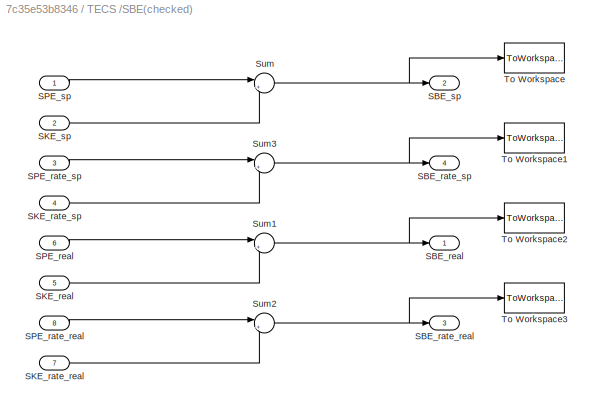
BLOCK [SubSystem] TECS /SBE(checked)
  Ports = [8, 4]
  RequestExecContextInheritance = off
BLOCK [Outport] TECS /SBE(checked)/SBE_rate_real
  IconDisplay = Port number
  Port = 3
  VectorParamsAs1DForOutWhenUnconnected = on
BLOCK [Outport] TECS /SBE(checked)/SBE_rate_sp
  IconDisplay = Port number
  Port = 4
  VectorParamsAs1DForOutWhenUnconnected = on
BLOCK [Outport] TECS /SBE(checked)/SBE_real
  IconDisplay = Port number
  VectorParamsAs1DForOutWhenUnconnected = on
BLOCK [Outport] TECS /SBE(checked)/SBE_sp
  IconDisplay = Port number
  Port = 2
  VectorParamsAs1DForOutWhenUnconnected = on
BLOCK [Inport] TECS /SBE(checked)/SKE_rate_real
  IconDisplay = Port number
  Port = 7
BLOCK [Inport] TECS /SBE(checked)/SKE_rate_sp
  IconDisplay = Port number
  Port = 4
BLOCK [Inport] TECS /SBE(checked)/SKE_real
  IconDisplay = Port number
  Port = 5
BLOCK [Inport] TECS /SBE(checked)/SKE_sp
  IconDisplay = Port number
  Port = 2
BLOCK [Inport] TECS /SBE(checked)/SPE_rate_real
  IconDisplay = Port number
  Port = 8
BLOCK [Inport] TECS /SBE(checked)/SPE_rate_sp
  IconDisplay = Port number
  Port = 3
BLOCK [Inport] TECS /SBE(checked)/SPE_real
  IconDisplay = Port number
  Port = 6
BLOCK [Inport] TECS /SBE(checked)/SPE_sp
  IconDisplay = Port number
BLOCK [Sum] TECS /SBE(checked)/Sum
  IconShape = round
  InputSameDT = off
  Inputs = |+-
  OutDataTypeStr = Inherit: Inherit via internal rule
  Ports = [2, 1]
  SaturateOnIntegerOverflow = off
BLOCK [Sum] TECS /SBE(checked)/Sum1
  IconShape = round
  InputSameDT = off
  Inputs = |+-
  OutDataTypeStr = Inherit: Inherit via internal rule
  Ports = [2, 1]
  SaturateOnIntegerOverflow = off
BLOCK [Sum] TECS /SBE(checked)/Sum2
  IconShape = round
  InputSameDT = off
  Inputs = |+-
  OutDataTypeStr = Inherit: Inherit via internal rule
  Ports = [2, 1]
  SaturateOnIntegerOverflow = off
BLOCK [Sum] TECS /SBE(checked)/Sum3
  IconShape = round
  InputSameDT = off
  Inputs = |+-
  OutDataTypeStr = Inherit: Inherit via internal rule
  Ports = [2, 1]
  SaturateOnIntegerOverflow = off
BLOCK [ToWorkspace] TECS /SBE(checked)/To Workspace
  FixptAsFi = on
  MaxDataPoints = inf
  Ports = [1]
  SampleTime = -1
  Save2DSignal = 3-D array (concatenate along third dimension)
  SaveFormat = Timeseries
  VariableName = SBE_sp
BLOCK [ToWorkspace] TECS /SBE(checked)/To Workspace1
  FixptAsFi = on
  MaxDataPoints = inf
  Ports = [1]
  SampleTime = -1
  Save2DSignal = 3-D array (concatenate along third dimension)
  SaveFormat = Timeseries
  VariableName = SBE_rate_sp
BLOCK [ToWorkspace] TECS /SBE(checked)/To Workspace2
  FixptAsFi = on
  MaxDataPoints = inf
  Ports = [1]
  SampleTime = -1
  Save2DSignal = 3-D array (concatenate along third dimension)
  SaveFormat = Timeseries
  VariableName = SBE_real
BLOCK [ToWorkspace] TECS /SBE(checked)/To Workspace3
  FixptAsFi = on
  MaxDataPoints = inf
  Ports = [1]
  SampleTime = -1
  Save2DSignal = 3-D array (concatenate along third dimension)
  SaveFormat = Timeseries
  VariableName = SBE_rate_real
BLOCK [SubSystem] TECS /STE(checked)
  Ports = [8, 4]
  RequestExecContextInheritance = off
BLOCK [Inport] TECS /STE(checked)/SKE_rate_real
  IconDisplay = Port number
  Port = 7
BLOCK [Inport] TECS /STE(checked)/SKE_rate_sp
  IconDisplay = Port number
  Port = 4
BLOCK [Inport] TECS /STE(checked)/SKE_real
  IconDisplay = Port number
  Port = 5
BLOCK [Inport] TECS /STE(checked)/SKE_sp
  IconDisplay = Port number
  Port = 2
BLOCK [Inport] TECS /STE(checked)/SPE_rate_real
  IconDisplay = Port number
  Port = 8
BLOCK [Inport] TECS /STE(checked)/SPE_rate_sp
  IconDisplay = Port number
  Port = 3
BLOCK [Inport] TECS /STE(checked)/SPE_real
  IconDisplay = Port number
  Port = 6
BLOCK [Inport] TECS /STE(checked)/SPE_sp
  IconDisplay = Port number
BLOCK [Outport] TECS /STE(checked)/STE_rate_real
  IconDisplay = Port number
  Port = 3
  VectorParamsAs1DForOutWhenUnconnected = on
BLOCK [Outport] TECS /STE(checked)/STE_rate_sp
  IconDisplay = Port number
  Port = 4
  VectorParamsAs1DForOutWhenUnconnected = on
BLOCK [Outport] TECS /STE(checked)/STE_real
  IconDisplay = Port number
  VectorParamsAs1DForOutWhenUnconnected = on
BLOCK [Outport] TECS /STE(checked)/STE_sp
  IconDisplay = Port number
  Port = 2
  VectorParamsAs1DForOutWhenUnconnected = on
BLOCK [Sum] TECS /STE(checked)/Sum
  IconShape = round
  InputSameDT = off
  Inputs = |++
  OutDataTypeStr = Inherit: Inherit via internal rule
  Ports = [2, 1]
  SaturateOnIntegerOverflow = off
BLOCK [Sum] TECS /STE(checked)/Sum1
  IconShape = round
  InputSameDT = off
  Inputs = |++
  OutDataTypeStr = Inherit: Inherit via internal rule
  Ports = [2, 1]
  SaturateOnIntegerOverflow = off
BLOCK [Sum] TECS /STE(checked)/Sum2
  IconShape = round
  InputSameDT = off
  Inputs = |++
  OutDataTypeStr = Inherit: Inherit via internal rule
  Ports = [2, 1]
  SaturateOnIntegerOverflow = off
BLOCK [Sum] TECS /STE(checked)/Sum3
  IconShape = round
  InputSameDT = off
  Inputs = |++
  OutDataTypeStr = Inherit: Inherit via internal rule
  Ports = [2, 1]
  SaturateOnIntegerOverflow = off
BLOCK [Scope] TECS /Scope
  Floating = off
  NumInputPorts = 1
  Ports = [1]
  ScopeSpecificationString = Simulink.scopes.TimeScopeBlockCfg('CurrentConfiguration', extmgr.ConfigurationSet(extmgr.Configuration('Core','General UI',true),extmgr.Configuration('Core','Source UI',true),extmgr.Configuration('Sources','WiredSimulink',true,'DataLoggingVariableName','ScopeData1'),extmgr.Configuration('Visuals','Time Domain',true,'SerializedDisplays',{struct('MinYLimReal','0.08909','MaxYLimReal','0.11646','YLabe...<+1402ch>
BLOCK [Scope] TECS /Scope1
  Floating = off
  NumInputPorts = 1
  Ports = [1]
  ScopeSpecificationString = Simulink.scopes.TimeScopeBlockCfg('CurrentConfiguration', extmgr.ConfigurationSet(extmgr.Configuration('Core','General UI',true),extmgr.Configuration('Core','Source UI',true),extmgr.Configuration('Sources','WiredSimulink',true,'DataLoggingVariableName','ScopeData2'),extmgr.Configuration('Visuals','Time Domain',true,'SerializedDisplays',{struct('MinYLimReal','-49220488.99416','MaxYLimReal','1144601...<+1499ch>
BLOCK [SubSystem] TECS /Subsystem1
  Ports = [4, 1]
  RequestExecContextInheritance = off
BLOCK [Gain] TECS /Subsystem1/Gain
  Gain = thr_inget_gain
  OutDataTypeStr = Inherit: Inherit via internal rule
  ParamDataTypeStr = Inherit: Inherit via internal rule
  SaturateOnIntegerOverflow = off
BLOCK [Gain] TECS /Subsystem1/Gain1
  Gain = thr_damp_gain
  OutDataTypeStr = Inherit: Inherit via internal rule
  ParamDataTypeStr = Inherit: Inherit via internal rule
  SaturateOnIntegerOverflow = off
BLOCK [Gain] TECS /Subsystem1/Gain3
  Gain = 1/(timeConstThrot*(climb_max*g_common-sink_max*g_common))
  OutDataTypeStr = Inherit: Inherit via internal rule
  ParamDataTypeStr = Inherit: Inherit via internal rule
  SaturateOnIntegerOverflow = off
BLOCK [Gain] TECS /Subsystem1/Gain4
  Gain = 1/timeConstThrot
  OutDataTypeStr = Inherit: Inherit via internal rule
  ParamDataTypeStr = Inherit: Inherit via internal rule
  SaturateOnIntegerOverflow = off
BLOCK [Inport] TECS /Subsystem1/In1
  IconDisplay = Port number
BLOCK [Inport] TECS /Subsystem1/In2
  IconDisplay = Port number
  Port = 2
BLOCK [Inport] TECS /Subsystem1/In3
  IconDisplay = Port number
  Port = 3
BLOCK [Inport] TECS /Subsystem1/In4
  IconDisplay = Port number
  Port = 4
BLOCK [Outport] TECS /Subsystem1/Out1
  IconDisplay = Port number
  VectorParamsAs1DForOutWhenUnconnected = on
BLOCK [Sum] TECS /Subsystem1/Sum
  IconShape = round
  InputSameDT = off
  Inputs = |-+
  OutDataTypeStr = Inherit: Inherit via internal rule
  Ports = [2, 1]
  SaturateOnIntegerOverflow = off
BLOCK [Sum] TECS /Subsystem1/Sum1
  IconShape = round
  InputSameDT = off
  Inputs = |-+
  OutDataTypeStr = Inherit: Inherit via internal rule
  Ports = [2, 1]
  SaturateOnIntegerOverflow = off
BLOCK [Sum] TECS /Subsystem1/Sum2
  IconShape = round
  InputSameDT = off
  Inputs = |+++
  OutDataTypeStr = Inherit: Inherit via internal rule
  Ports = [3, 1]
  SaturateOnIntegerOverflow = off
BLOCK [Sum] TECS /Subsystem1/Sum3
  IconShape = round
  InputSameDT = off
  Inputs = |++
  OutDataTypeStr = Inherit: Inherit via internal rule
  Ports = [2, 1]
  SaturateOnIntegerOverflow = off
BLOCK [Switch] TECS /Subsystem1/Switch
  Criteria = u2 > Threshold
  InputSameDT = off
  SaturateOnIntegerOverflow = off
  ZeroCross = off
BLOCK [SubSystem] TECS /Subsystem1/dem<0
  Ports = [1, 1]
  RequestExecContextInheritance = off
BLOCK [Constant] TECS /Subsystem1/dem<0/Constant
  Value = nomThr
BLOCK [Gain] TECS /Subsystem1/dem<0/Gain
  Gain = 1/(sink_max*g_common)
  OutDataTypeStr = Inherit: Inherit via internal rule
  ParamDataTypeStr = Inherit: Inherit via internal rule
  SaturateOnIntegerOverflow = off
BLOCK [Gain] TECS /Subsystem1/dem<0/Gain1
  Gain = nomThr
  OutDataTypeStr = Inherit: Inherit via internal rule
  ParamDataTypeStr = Inherit: Inherit via internal rule
  SaturateOnIntegerOverflow = off
BLOCK [Outport] TECS /Subsystem1/dem<0/Out1
  IconDisplay = Port number
  VectorParamsAs1DForOutWhenUnconnected = on
BLOCK [Sum] TECS /Subsystem1/dem<0/Sum
  IconShape = round
  InputSameDT = off
  Inputs = |+-
  OutDataTypeStr = Inherit: Inherit via internal rule
  Ports = [2, 1]
  SaturateOnIntegerOverflow = off
BLOCK [Inport] TECS /Subsystem1/dem<0/e_dot_sp
  IconDisplay = Port number
BLOCK [SubSystem] TECS /Subsystem1/dem>=0
  Ports = [1, 1]
  RequestExecContextInheritance = off
BLOCK [Constant] TECS /Subsystem1/dem>=0/Constant
  Value = nomThr
BLOCK [Gain] TECS /Subsystem1/dem>=0/Gain
  Gain = 1/(climb_max*g_common)
  OutDataTypeStr = Inherit: Inherit via internal rule
  ParamDataTypeStr = Inherit: Inherit via internal rule
  SaturateOnIntegerOverflow = off
BLOCK [Gain] TECS /Subsystem1/dem>=0/Gain1
  Gain = 1-nomThr
  OutDataTypeStr = Inherit: Inherit via internal rule
  ParamDataTypeStr = Inherit: Inherit via internal rule
  SaturateOnIntegerOverflow = off
BLOCK [Outport] TECS /Subsystem1/dem>=0/Out1
  IconDisplay = Port number
  VectorParamsAs1DForOutWhenUnconnected = on
BLOCK [Sum] TECS /Subsystem1/dem>=0/Sum
  IconShape = round
  InputSameDT = off
  Inputs = |++
  OutDataTypeStr = Inherit: Inherit via internal rule
  Ports = [2, 1]
  SaturateOnIntegerOverflow = off
BLOCK [Inport] TECS /Subsystem1/dem>=0/e_dot_sp
  IconDisplay = Port number
BLOCK [SubSystem] TECS /Subsystem2
  Ports = [5, 1]
  RequestExecContextInheritance = off
BLOCK [Gain] TECS /Subsystem2/1//pitch_time_constant
  Gain = 1/pitch_time_constant
  OutDataTypeStr = Inherit: Inherit via internal rule
  ParamDataTypeStr = Inherit: Inherit via internal rule
  SaturateOnIntegerOverflow = off
BLOCK [Constant] TECS /Subsystem2/Constant
  Value = 0
BLOCK [Product] TECS /Subsystem2/Divide
  InputSameDT = off
  Inputs = /*
  OutDataTypeStr = Inherit: Inherit via internal rule
  Ports = [2, 1]
  RndMeth = Floor
  SaturateOnIntegerOverflow = off
BLOCK [Gain] TECS /Subsystem2/Gain
  Gain = pitch_integ_gain
  OutDataTypeStr = Inherit: Inherit via internal rule
  ParamDataTypeStr = Inherit: Inherit via internal rule
  SaturateOnIntegerOverflow = off
BLOCK [Inport] TECS /Subsystem2/SBE_rate_real
  IconDisplay = Port number
  Port = 3
BLOCK [Inport] TECS /Subsystem2/SBE_rate_sp
  IconDisplay = Port number
  Port = 4
BLOCK [Inport] TECS /Subsystem2/SBE_real
  IconDisplay = Port number
BLOCK [Inport] TECS /Subsystem2/SBE_sp
  IconDisplay = Port number
  Port = 2
BLOCK [Scope] TECS /Subsystem2/Scope
  Floating = off
  NumInputPorts = 1
  Ports = [1]
  ScopeSpecificationString = Simulink.scopes.TimeScopeBlockCfg('CurrentConfiguration', extmgr.ConfigurationSet(extmgr.Configuration('Core','General UI',true),extmgr.Configuration('Core','Source UI',true),extmgr.Configuration('Sources','WiredSimulink',true,'DataLoggingVariableName','ScopeData1','DataLoggingSaveFormat','Array','DataLoggingLimitDataPoints',true,'DataLoggingDecimation','1'),extmgr.Configuration('Visuals','Time Do...<+1726ch>
BLOCK [Sum] TECS /Subsystem2/Sum
  IconShape = round
  InputSameDT = off
  Inputs = |-+
  OutDataTypeStr = Inherit: Inherit via internal rule
  Ports = [2, 1]
  SaturateOnIntegerOverflow = off
BLOCK [Sum] TECS /Subsystem2/Sum1
  IconShape = round
  InputSameDT = off
  Inputs = |+++
  OutDataTypeStr = Inherit: Inherit via internal rule
  Ports = [3, 1]
  SaturateOnIntegerOverflow = off
BLOCK [Sum] TECS /Subsystem2/Sum2
  IconShape = round
  InputSameDT = off
  Inputs = |-+
  OutDataTypeStr = Inherit: Inherit via internal rule
  Ports = [2, 1]
  SaturateOnIntegerOverflow = off
BLOCK [Sum] TECS /Subsystem2/Sum3
  IconShape = round
  InputSameDT = off
  Inputs = |++
  OutDataTypeStr = Inherit: Inherit via internal rule
  Ports = [2, 1]
  SaturateOnIntegerOverflow = off
BLOCK [Switch] TECS /Subsystem2/Switch
  Criteria = u2 > Threshold
  InputSameDT = off
  SaturateOnIntegerOverflow = off
BLOCK [TransferFcn] TECS /Subsystem2/Transfer Fcn
  Denominator = [1 0]
BLOCK [Gain] TECS /Subsystem2/g_common
  Gain = g_common
  OutDataTypeStr = Inherit: Inherit via internal rule
  ParamDataTypeStr = Inherit: Inherit via internal rule
  SaturateOnIntegerOverflow = off
BLOCK [Gain] TECS /Subsystem2/pitch_damping_gain
  Gain = pitch_damping_gain
  OutDataTypeStr = Inherit: Inherit via internal rule
  ParamDataTypeStr = Inherit: Inherit via internal rule
  SaturateOnIntegerOverflow = off
BLOCK [Gain] TECS /Subsystem2/pitch_time_constant
  Gain = pitch_time_constant
  OutDataTypeStr = Inherit: Inherit via internal rule
  ParamDataTypeStr = Inherit: Inherit via internal rule
  SaturateOnIntegerOverflow = off
BLOCK [Outport] TECS /Subsystem2/theta
  IconDisplay = Port number
  VectorParamsAs1DForOutWhenUnconnected = on
BLOCK [Inport] TECS /Subsystem2/vel_real
  IconDisplay = Port number
  Port = 5
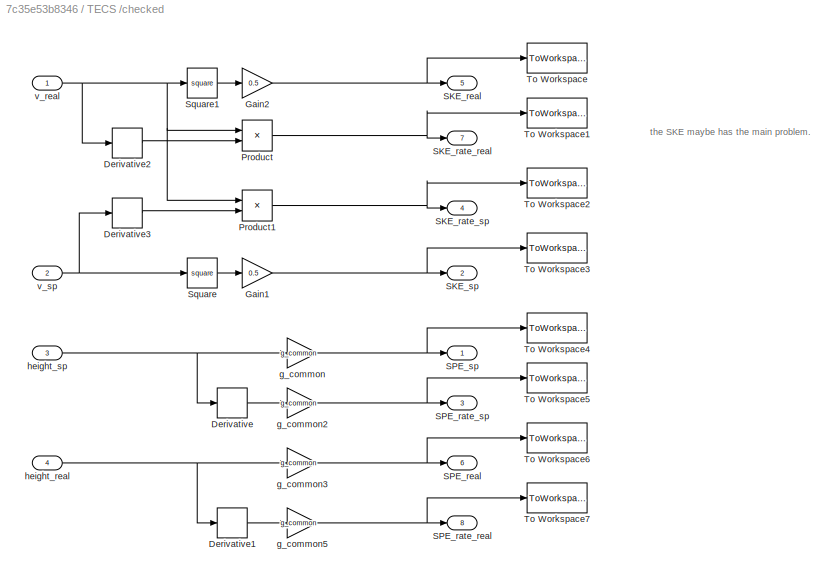
BLOCK [SubSystem] TECS /checked
  Ports = [4, 8]
  RequestExecContextInheritance = off
BLOCK [Derivative] TECS /checked/Derivative
BLOCK [Derivative] TECS /checked/Derivative1
BLOCK [Derivative] TECS /checked/Derivative2
BLOCK [Derivative] TECS /checked/Derivative3
BLOCK [Gain] TECS /checked/Gain1
  Gain = 0.5
  OutDataTypeStr = Inherit: Inherit via internal rule
  ParamDataTypeStr = Inherit: Inherit via internal rule
  SaturateOnIntegerOverflow = off
BLOCK [Gain] TECS /checked/Gain2
  Gain = 0.5
  OutDataTypeStr = Inherit: Inherit via internal rule
  ParamDataTypeStr = Inherit: Inherit via internal rule
  SaturateOnIntegerOverflow = off
BLOCK [Product] TECS /checked/Product
  InputSameDT = off
  OutDataTypeStr = Inherit: Inherit via internal rule
  Ports = [2, 1]
  RndMeth = Floor
  SaturateOnIntegerOverflow = off
BLOCK [Product] TECS /checked/Product1
  InputSameDT = off
  OutDataTypeStr = Inherit: Inherit via internal rule
  Ports = [2, 1]
  RndMeth = Floor
  SaturateOnIntegerOverflow = off
BLOCK [Outport] TECS /checked/SKE_rate_real
  IconDisplay = Port number
  Port = 7
  VectorParamsAs1DForOutWhenUnconnected = on
BLOCK [Outport] TECS /checked/SKE_rate_sp
  IconDisplay = Port number
  Port = 4
  VectorParamsAs1DForOutWhenUnconnected = on
BLOCK [Outport] TECS /checked/SKE_real
  IconDisplay = Port number
  Port = 5
  VectorParamsAs1DForOutWhenUnconnected = on
BLOCK [Outport] TECS /checked/SKE_sp
  IconDisplay = Port number
  Port = 2
  VectorParamsAs1DForOutWhenUnconnected = on
BLOCK [Outport] TECS /checked/SPE_rate_real
  IconDisplay = Port number
  Port = 8
  VectorParamsAs1DForOutWhenUnconnected = on
BLOCK [Outport] TECS /checked/SPE_rate_sp
  IconDisplay = Port number
  Port = 3
  VectorParamsAs1DForOutWhenUnconnected = on
BLOCK [Outport] TECS /checked/SPE_real
  IconDisplay = Port number
  Port = 6
  VectorParamsAs1DForOutWhenUnconnected = on
BLOCK [Outport] TECS /checked/SPE_sp
  IconDisplay = Port number
  VectorParamsAs1DForOutWhenUnconnected = on
BLOCK [Math] TECS /checked/Square
  Operator = square
  Ports = [1, 1]
BLOCK [Math] TECS /checked/Square1
  Operator = square
  Ports = [1, 1]
BLOCK [ToWorkspace] TECS /checked/To Workspace
  FixptAsFi = on
  MaxDataPoints = inf
  Ports = [1]
  SampleTime = -1
  Save2DSignal = 3-D array (concatenate along third dimension)
  SaveFormat = Timeseries
  VariableName = SKE_real
BLOCK [ToWorkspace] TECS /checked/To Workspace1
  FixptAsFi = on
  MaxDataPoints = inf
  Ports = [1]
  SampleTime = -1
  Save2DSignal = 3-D array (concatenate along third dimension)
  SaveFormat = Timeseries
  VariableName = SKE_rate_real
BLOCK [ToWorkspace] TECS /checked/To Workspace2
  FixptAsFi = on
  MaxDataPoints = inf
  Ports = [1]
  SampleTime = -1
  Save2DSignal = 3-D array (concatenate along third dimension)
  SaveFormat = Timeseries
  VariableName = SKE_rate_sp
BLOCK [ToWorkspace] TECS /checked/To Workspace3
  FixptAsFi = on
  MaxDataPoints = inf
  Ports = [1]
  SampleTime = -1
  Save2DSignal = 3-D array (concatenate along third dimension)
  SaveFormat = Timeseries
  VariableName = SKE_sp
BLOCK [ToWorkspace] TECS /checked/To Workspace4
  FixptAsFi = on
  MaxDataPoints = inf
  Ports = [1]
  SampleTime = -1
  Save2DSignal = 3-D array (concatenate along third dimension)
  SaveFormat = Timeseries
  VariableName = SPE_sp
BLOCK [ToWorkspace] TECS /checked/To Workspace5
  FixptAsFi = on
  MaxDataPoints = inf
  Ports = [1]
  SampleTime = -1
  Save2DSignal = 3-D array (concatenate along third dimension)
  SaveFormat = Timeseries
  VariableName = SPE_rate_sp
BLOCK [ToWorkspace] TECS /checked/To Workspace6
  FixptAsFi = on
  MaxDataPoints = inf
  Ports = [1]
  SampleTime = -1
  Save2DSignal = 3-D array (concatenate along third dimension)
  SaveFormat = Timeseries
  VariableName = SPE_real
BLOCK [ToWorkspace] TECS /checked/To Workspace7
  FixptAsFi = on
  MaxDataPoints = inf
  Ports = [1]
  SampleTime = -1
  Save2DSignal = 3-D array (concatenate along third dimension)
  SaveFormat = Timeseries
  VariableName = SPE_rate_real
BLOCK [Gain] TECS /checked/g_common
  Gain = g_common
  OutDataTypeStr = Inherit: Inherit via internal rule
  ParamDataTypeStr = Inherit: Inherit via internal rule
  SaturateOnIntegerOverflow = off
BLOCK [Gain] TECS /checked/g_common2
  Gain = g_common
  OutDataTypeStr = Inherit: Inherit via internal rule
  ParamDataTypeStr = Inherit: Inherit via internal rule
  SaturateOnIntegerOverflow = off
BLOCK [Gain] TECS /checked/g_common3
  Gain = g_common
  OutDataTypeStr = Inherit: Inherit via internal rule
  ParamDataTypeStr = Inherit: Inherit via internal rule
  SaturateOnIntegerOverflow = off
BLOCK [Gain] TECS /checked/g_common5
  Gain = g_common
  OutDataTypeStr = Inherit: Inherit via internal rule
  ParamDataTypeStr = Inherit: Inherit via internal rule
  SaturateOnIntegerOverflow = off
BLOCK [Inport] TECS /checked/height_real
  IconDisplay = Port number
  Port = 4
BLOCK [Inport] TECS /checked/height_sp
  IconDisplay = Port number
  Port = 3
BLOCK [Inport] TECS /checked/v_real
  IconDisplay = Port number
BLOCK [Inport] TECS /checked/v_sp
  IconDisplay = Port number
  Port = 2
BLOCK [Inport] TECS /height_real
  IconDisplay = Port number
  Port = 4
BLOCK [Inport] TECS /height_sp
  IconDisplay = Port number
  Port = 3
BLOCK [Outport] TECS /theta_sp 
  IconDisplay = Port number
  Port = 2
  VectorParamsAs1DForOutWhenUnconnected = on
BLOCK [Outport] TECS /thrust_sp
  IconDisplay = Port number
  VectorParamsAs1DForOutWhenUnconnected = on
BLOCK [Inport] TECS /v_real
  IconDisplay = Port number
BLOCK [Inport] TECS /v_sp
  IconDisplay = Port number
  Port = 2
BLOCK [ToWorkspace] To Workspace
  FixptAsFi = on
  MaxDataPoints = inf
  Ports = [1]
  SampleTime = -1
  Save2DSignal = 3-D array (concatenate along third dimension)
  SaveFormat = Timeseries
  VariableName = V_real
BLOCK [ToWorkspace] To Workspace1
  FixptAsFi = on
  MaxDataPoints = inf
  Ports = [1]
  SampleTime = -1
  Save2DSignal = 3-D array (concatenate along third dimension)
  SaveFormat = Timeseries
  VariableName = height
BLOCK [ToWorkspace] To Workspace2
  FixptAsFi = on
  MaxDataPoints = inf
  Ports = [1]
  SampleTime = -1
  Save2DSignal = 3-D array (concatenate along third dimension)
  SaveFormat = Timeseries
  VariableName = thrust_sp
BLOCK [ToWorkspace] To Workspace3
  FixptAsFi = on
  MaxDataPoints = inf
  Ports = [1]
  SampleTime = -1
  Save2DSignal = 3-D array (concatenate along third dimension)
  SaveFormat = Timeseries
  VariableName = theta_sp
ANNOTATION (root): FIXED_WING_TECS_SIMULATION author:lee-shun <email>
ANNOTATION TECS /checked: the SKE maybe has the main problem.
LINE Constant1:1 -> TECS :3
LINE Constant:1 -> TECS :2
LINE PLANE(checked)/Gain1:1 -> PLANE(checked)/Transfer Fcn:1
LINE PLANE(checked)/Gain2:1 -> PLANE(checked)/Sum1:2
LINE PLANE(checked)/Gain:1 -> PLANE(checked)/Sum:2
LINE PLANE(checked)/IC:1 -> PLANE(checked)/v_real:1
LINE PLANE(checked)/Product:1 -> PLANE(checked)/Transfer Fcn1:1
NET PLANE(checked)/Sin:1 -> PLANE(checked)/Gain:1, PLANE(checked)/Product:2
LINE PLANE(checked)/Square:1 -> PLANE(checked)/Gain2:1
LINE PLANE(checked)/Sum1:1 -> PLANE(checked)/Gain1:1
LINE PLANE(checked)/Sum:1 -> PLANE(checked)/Sum1:1
LINE PLANE(checked)/Transfer Fcn1:1 -> PLANE(checked)/height:1
NET PLANE(checked)/Transfer Fcn:1 -> PLANE(checked)/IC:1, PLANE(checked)/Product:1, PLANE(checked)/Square:1
LINE PLANE(checked)/roter_rate_force:1 -> PLANE(checked)/Sum:1
LINE PLANE(checked)/scale_to_roter kg:1 -> PLANE(checked)/roter_rate_force:1
LINE PLANE(checked)/theta:1 -> PLANE(checked)/Sin:1
LINE PLANE(checked)/thrust:1 -> PLANE(checked)/scale_to_roter kg:1
NET PLANE(checked):1 -> Scope:1, TECS :1, To Workspace:1
NET PLANE(checked):2 -> Scope1:1, TECS :4, To Workspace1:1
LINE Saturation2:1 -> PLANE(checked):1
LINE Saturation3:1 -> PLANE(checked):2
LINE TECS /SBE(checked)/SKE_rate_real:1 -> TECS /SBE(checked)/Sum2:2
LINE TECS /SBE(checked)/SKE_rate_sp:1 -> TECS /SBE(checked)/Sum3:2
LINE TECS /SBE(checked)/SKE_real:1 -> TECS /SBE(checked)/Sum1:2
LINE TECS /SBE(checked)/SKE_sp:1 -> TECS /SBE(checked)/Sum:2
LINE TECS /SBE(checked)/SPE_rate_real:1 -> TECS /SBE(checked)/Sum2:1
LINE TECS /SBE(checked)/SPE_rate_sp:1 -> TECS /SBE(checked)/Sum3:1
LINE TECS /SBE(checked)/SPE_real:1 -> TECS /SBE(checked)/Sum1:1
LINE TECS /SBE(checked)/SPE_sp:1 -> TECS /SBE(checked)/Sum:1
NET TECS /SBE(checked)/Sum1:1 -> TECS /SBE(checked)/SBE_real:1, TECS /SBE(checked)/To Workspace2:1
NET TECS /SBE(checked)/Sum2:1 -> TECS /SBE(checked)/SBE_rate_real:1, TECS /SBE(checked)/To Workspace3:1
NET TECS /SBE(checked)/Sum3:1 -> TECS /SBE(checked)/SBE_rate_sp:1, TECS /SBE(checked)/To Workspace1:1
NET TECS /SBE(checked)/Sum:1 -> TECS /SBE(checked)/SBE_sp:1, TECS /SBE(checked)/To Workspace:1
LINE TECS /SBE(checked):1 -> TECS /Subsystem2:1
LINE TECS /SBE(checked):2 -> TECS /Subsystem2:2
LINE TECS /SBE(checked):3 -> TECS /Subsystem2:3
LINE TECS /SBE(checked):4 -> TECS /Subsystem2:4
LINE TECS /STE(checked)/SKE_rate_real:1 -> TECS /STE(checked)/Sum2:1
LINE TECS /STE(checked)/SKE_rate_sp:1 -> TECS /STE(checked)/Sum3:2
LINE TECS /STE(checked)/SKE_real:1 -> TECS /STE(checked)/Sum1:1
LINE TECS /STE(checked)/SKE_sp:1 -> TECS /STE(checked)/Sum:2
LINE TECS /STE(checked)/SPE_rate_real:1 -> TECS /STE(checked)/Sum2:2
LINE TECS /STE(checked)/SPE_rate_sp:1 -> TECS /STE(checked)/Sum3:1
LINE TECS /STE(checked)/SPE_real:1 -> TECS /STE(checked)/Sum1:2
LINE TECS /STE(checked)/SPE_sp:1 -> TECS /STE(checked)/Sum:1
LINE TECS /STE(checked)/Sum1:1 -> TECS /STE(checked)/STE_real:1
LINE TECS /STE(checked)/Sum2:1 -> TECS /STE(checked)/STE_rate_real:1
LINE TECS /STE(checked)/Sum3:1 -> TECS /STE(checked)/STE_rate_sp:1
LINE TECS /STE(checked)/Sum:1 -> TECS /STE(checked)/STE_sp:1
LINE TECS /STE(checked):1 -> TECS /Subsystem1:1
LINE TECS /STE(checked):2 -> TECS /Subsystem1:2
LINE TECS /STE(checked):3 -> TECS /Subsystem1:3
LINE TECS /STE(checked):4 -> TECS /Subsystem1:4
LINE TECS /Subsystem1/Gain1:1 -> TECS /Subsystem1/Sum2:3
LINE TECS /Subsystem1/Gain3:1 -> TECS /Subsystem1/Sum3:1
LINE TECS /Subsystem1/Gain4:1 -> TECS /Subsystem1/Gain3:1
LINE TECS /Subsystem1/Gain:1 -> TECS /Subsystem1/Sum2:1
LINE TECS /Subsystem1/In1:1 -> TECS /Subsystem1/Sum:1
LINE TECS /Subsystem1/In2:1 -> TECS /Subsystem1/Sum:2
LINE TECS /Subsystem1/In3:1 -> TECS /Subsystem1/Sum1:1
NET TECS /Subsystem1/In4:1 -> TECS /Subsystem1/Sum1:2, TECS /Subsystem1/Switch:2, TECS /Subsystem1/dem<0:1, TECS /Subsystem1/dem>=0:1
LINE TECS /Subsystem1/Sum1:1 -> TECS /Subsystem1/Gain1:1
LINE TECS /Subsystem1/Sum2:1 -> TECS /Subsystem1/Gain4:1
LINE TECS /Subsystem1/Sum3:1 -> TECS /Subsystem1/Out1:1
NET TECS /Subsystem1/Sum:1 -> TECS /Subsystem1/Gain:1, TECS /Subsystem1/Sum2:2
LINE TECS /Subsystem1/Switch:1 -> TECS /Subsystem1/Sum3:2
LINE TECS /Subsystem1/dem<0/Constant:1 -> TECS /Subsystem1/dem<0/Sum:1
LINE TECS /Subsystem1/dem<0/Gain1:1 -> TECS /Subsystem1/dem<0/Sum:2
LINE TECS /Subsystem1/dem<0/Gain:1 -> TECS /Subsystem1/dem<0/Gain1:1
LINE TECS /Subsystem1/dem<0/Sum:1 -> TECS /Subsystem1/dem<0/Out1:1
LINE TECS /Subsystem1/dem<0/e_dot_sp:1 -> TECS /Subsystem1/dem<0/Gain:1
LINE TECS /Subsystem1/dem<0:1 -> TECS /Subsystem1/Switch:3
LINE TECS /Subsystem1/dem>=0/Constant:1 -> TECS /Subsystem1/dem>=0/Sum:1
LINE TECS /Subsystem1/dem>=0/Gain1:1 -> TECS /Subsystem1/dem>=0/Sum:2
LINE TECS /Subsystem1/dem>=0/Gain:1 -> TECS /Subsystem1/dem>=0/Gain1:1
LINE TECS /Subsystem1/dem>=0/Sum:1 -> TECS /Subsystem1/dem>=0/Out1:1
LINE TECS /Subsystem1/dem>=0/e_dot_sp:1 -> TECS /Subsystem1/dem>=0/Gain:1
LINE TECS /Subsystem1/dem>=0:1 -> TECS /Subsystem1/Switch:1
NET TECS /Subsystem1:1 -> TECS /Scope:1, TECS /thrust_sp:1
LINE TECS /Subsystem2/1//pitch_time_constant:1 -> TECS /Subsystem2/Divide:2
LINE TECS /Subsystem2/Constant:1 -> TECS /Subsystem2/Switch:3
NET TECS /Subsystem2/Divide:1 -> TECS /Subsystem2/Scope:1, TECS /Subsystem2/theta:1
LINE TECS /Subsystem2/Gain:1 -> TECS /Subsystem2/Transfer Fcn:1
LINE TECS /Subsystem2/SBE_rate_real:1 -> TECS /Subsystem2/Sum2:1
NET TECS /Subsystem2/SBE_rate_sp:1 -> TECS /Subsystem2/Sum2:2, TECS /Subsystem2/pitch_time_constant:1
LINE TECS /Subsystem2/SBE_real:1 -> TECS /Subsystem2/Sum:1
LINE TECS /Subsystem2/SBE_sp:1 -> TECS /Subsystem2/Sum:2
LINE TECS /Subsystem2/Sum1:1 -> TECS /Subsystem2/Sum3:2
LINE TECS /Subsystem2/Sum2:1 -> TECS /Subsystem2/pitch_damping_gain:1
LINE TECS /Subsystem2/Sum3:1 -> TECS /Subsystem2/1//pitch_time_constant:1
NET TECS /Subsystem2/Sum:1 -> TECS /Subsystem2/Gain:1, TECS /Subsystem2/Sum1:1
LINE TECS /Subsystem2/Switch:1 -> TECS /Subsystem2/Sum3:1
NET TECS /Subsystem2/Transfer Fcn:1 -> TECS /Subsystem2/Switch:1, TECS /Subsystem2/Switch:2
LINE TECS /Subsystem2/g_common:1 -> TECS /Subsystem2/Divide:1
LINE TECS /Subsystem2/pitch_damping_gain:1 -> TECS /Subsystem2/Sum1:2
LINE TECS /Subsystem2/pitch_time_constant:1 -> TECS /Subsystem2/Sum1:3
LINE TECS /Subsystem2/vel_real:1 -> TECS /Subsystem2/g_common:1
NET TECS /Subsystem2:1 -> TECS /Scope1:1, TECS /theta_sp :1
LINE TECS /checked/Derivative1:1 -> TECS /checked/g_common5:1
LINE TECS /checked/Derivative2:1 -> TECS /checked/Product:2
LINE TECS /checked/Derivative3:1 -> TECS /checked/Product1:2
LINE TECS /checked/Derivative:1 -> TECS /checked/g_common2:1
NET TECS /checked/Gain1:1 -> TECS /checked/SKE_sp:1, TECS /checked/To Workspace3:1
NET TECS /checked/Gain2:1 -> TECS /checked/SKE_real:1, TECS /checked/To Workspace:1
NET TECS /checked/Product1:1 -> TECS /checked/SKE_rate_sp:1, TECS /checked/To Workspace2:1
NET TECS /checked/Product:1 -> TECS /checked/SKE_rate_real:1, TECS /checked/To Workspace1:1
LINE TECS /checked/Square1:1 -> TECS /checked/Gain2:1
LINE TECS /checked/Square:1 -> TECS /checked/Gain1:1
NET TECS /checked/g_common2:1 -> TECS /checked/SPE_rate_sp:1, TECS /checked/To Workspace5:1
NET TECS /checked/g_common3:1 -> TECS /checked/SPE_real:1, TECS /checked/To Workspace6:1
NET TECS /checked/g_common5:1 -> TECS /checked/SPE_rate_real:1, TECS /checked/To Workspace7:1
NET TECS /checked/g_common:1 -> TECS /checked/SPE_sp:1, TECS /checked/To Workspace4:1
NET TECS /checked/height_real:1 -> TECS /checked/Derivative1:1, TECS /checked/g_common3:1
NET TECS /checked/height_sp:1 -> TECS /checked/Derivative:1, TECS /checked/g_common:1
NET TECS /checked/v_real:1 -> TECS /checked/Derivative2:1, TECS /checked/Product1:1, TECS /checked/Product:1, TECS /checked/Square1:1
NET TECS /checked/v_sp:1 -> TECS /checked/Derivative3:1, TECS /checked/Square:1
NET TECS /checked:1 -> TECS /SBE(checked):1, TECS /STE(checked):1
NET TECS /checked:2 -> TECS /SBE(checked):2, TECS /STE(checked):2
NET TECS /checked:3 -> TECS /SBE(checked):3, TECS /STE(checked):3
NET TECS /checked:4 -> TECS /SBE(checked):4, TECS /STE(checked):4
NET TECS /checked:5 -> TECS /SBE(checked):5, TECS /STE(checked):5
NET TECS /checked:6 -> TECS /SBE(checked):6, TECS /STE(checked):6
NET TECS /checked:7 -> TECS /SBE(checked):7, TECS /STE(checked):7
NET TECS /checked:8 -> TECS /SBE(checked):8, TECS /STE(checked):8
LINE TECS /height_real:1 -> TECS /checked:4
LINE TECS /height_sp:1 -> TECS /checked:3
NET TECS /v_real:1 -> TECS /Subsystem2:5, TECS /checked:1
LINE TECS /v_sp:1 -> TECS /checked:2
NET TECS :1 -> Saturation2:1, Scope2:1, To Workspace2:1
NET TECS :2 -> Saturation3:1, Scope3:1, To Workspace3:1
note: NET lines group one-source signal fan-out (src -> all destinations, sorted); 1:1 wires keep LINE
